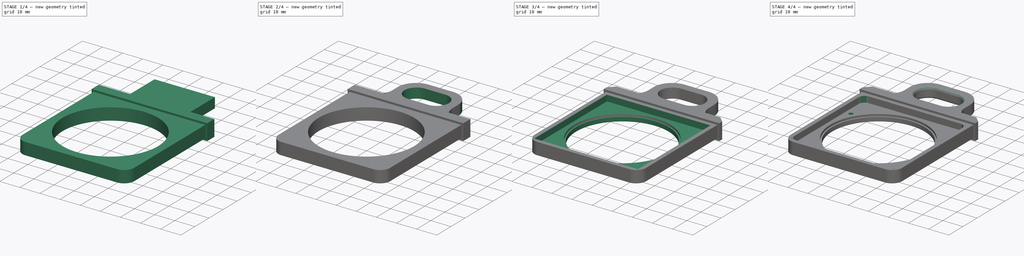
[diagram: build sequence overview — one tinted view per stage of 4, left to right]
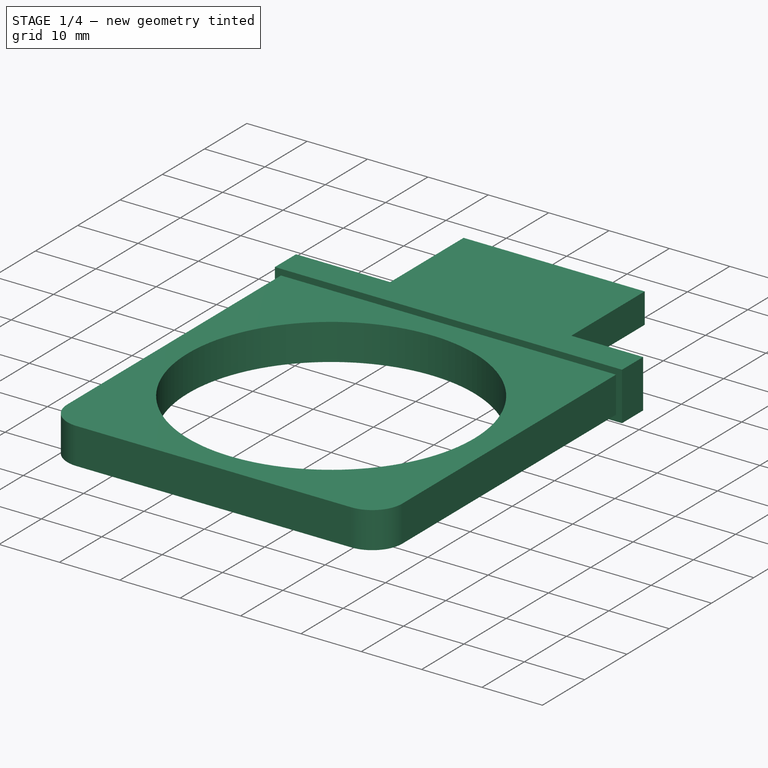
[diagram: stage 1 of 4 — iso view after this stage's code; geometry added in this stage tinted green]
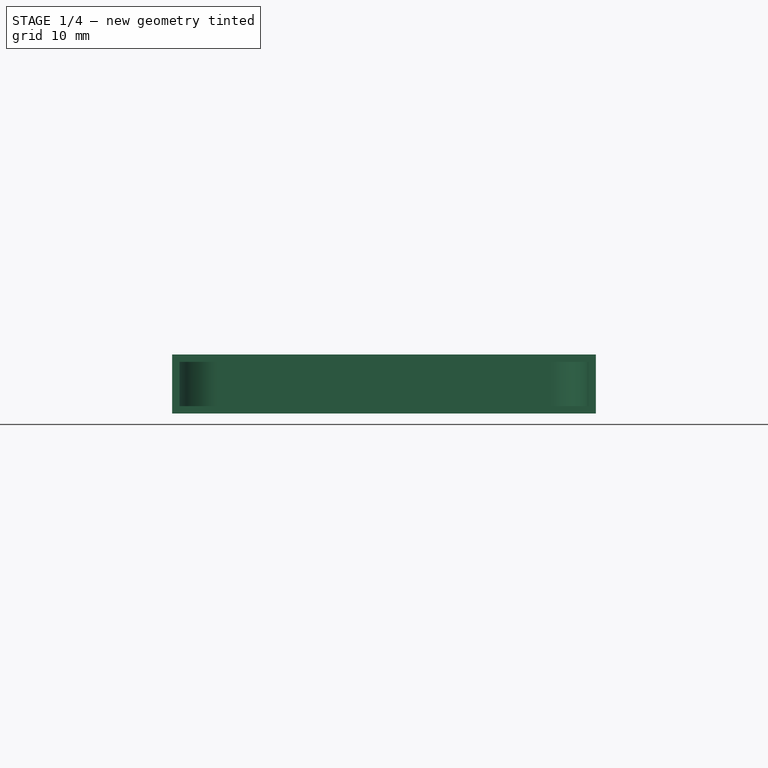
[diagram: stage 1 of 4 — front view after this stage's code; geometry added in this stage tinted green]
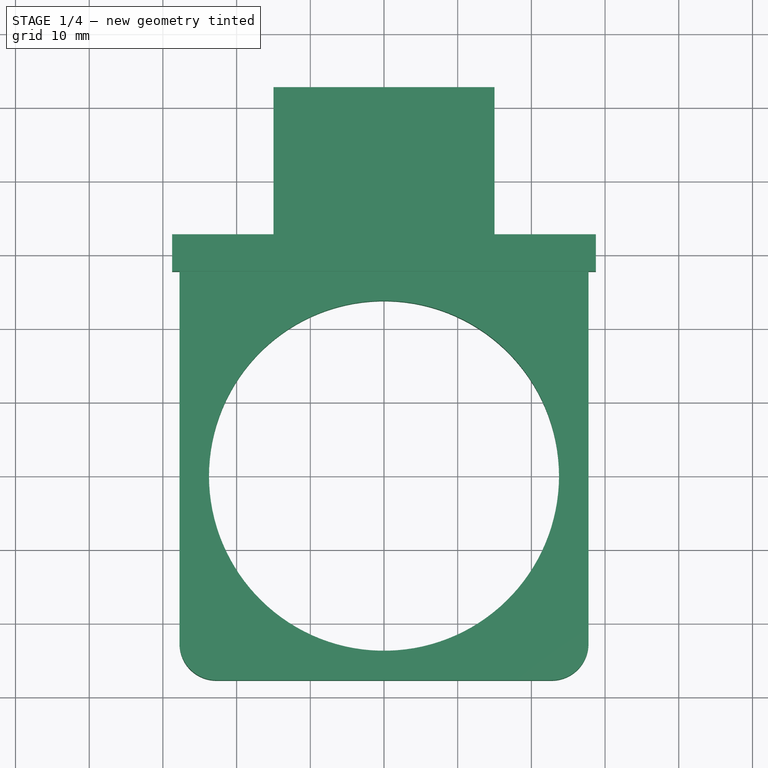
[diagram: stage 1 of 4 — top view after this stage's code; geometry added in this stage tinted green]
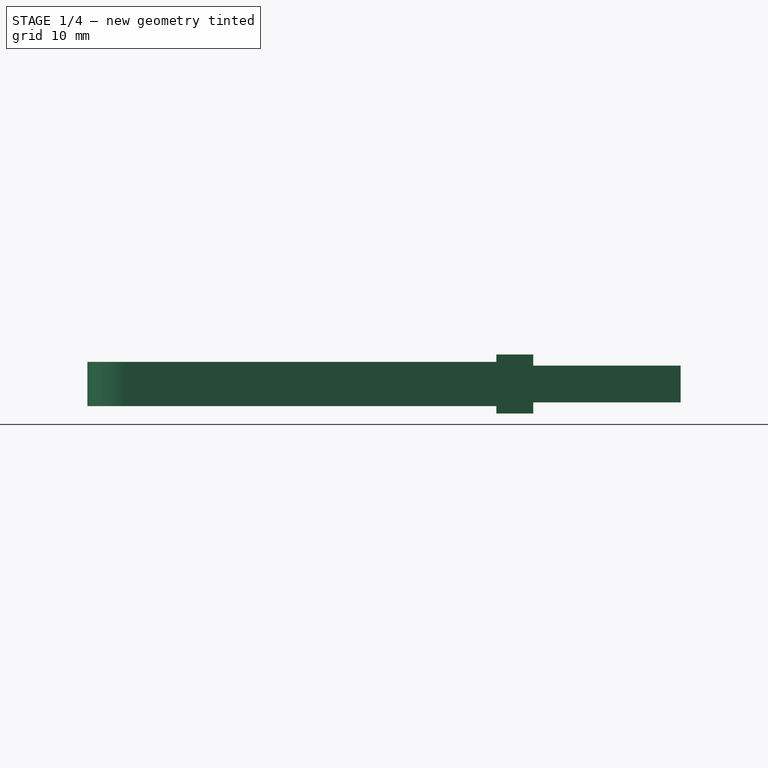
[diagram: stage 1 of 4 — right view after this stage's code; geometry added in this stage tinted green]
FCSTD DOCUMENT  (FreeCAD 0.16R6703 (Git))
Label: Schublade_47mm V1.0
License: CreativeCommons Attribution
LicenseURL: http://creativecommons.org/licenses/by/4.0/
objects: Sketcher::SketchObject×7, PartDesign::Fillet×6, PartDesign::Pad×4, PartDesign::Pocket×3, PartDesign::Chamfer×1
note: 28 computed .brp shape members not serialized (recipe doc carries the construction recipe); baked Part::Feature solids carry a one-line shape summary decoded from their .brp

FEATURE [Sketcher::SketchObject] Sketch
  sketch-geometry (6):
    g0: LineSegment StartX=-27.75 StartY=27.75 StartZ=0 EndX=27.75 EndY=27.75 EndZ=0
    g1: LineSegment StartX=27.75 StartY=27.75 StartZ=0 EndX=27.75 EndY=-27.75 EndZ=0
    g2: LineSegment StartX=27.75 StartY=-27.75 StartZ=0 EndX=-27.75 EndY=-27.75 EndZ=0
    g3: LineSegment StartX=-27.75 StartY=-27.75 StartZ=0 EndX=-27.75 EndY=27.75 EndZ=0
    g4: LineSegment [constr] StartX=-27.75 StartY=27.75 StartZ=0 EndX=27.75 EndY=-27.75 EndZ=0
    g5: Circle CenterX=0 CenterY=0 CenterZ=0 NormalX=0 NormalY=0 NormalZ=1 Radius=23.75
  constraints (15):
    c: Coincident(g0,g1)
    c: Coincident(g1,g2)
    c: Coincident(g2,g3)
    c: Coincident(g3,g0)
    c: Horizontal(g0)
    c: Horizontal(g2)
    c: Vertical(g1)
    c: Vertical(g3)
    c: Coincident(g4,g0)
    c: Coincident(g4,g1)
    c: Symmetric(g4,g4,g-1)
    c: Equal(g3,g0)
    c: DistanceX(g0) = 55.5
    c: Coincident(g5,g-1)
    c: Radius(g5) = 23.75
FEATURE [PartDesign::Pad] Pad
  Length = 6
  Length2 = 100
  Sketch = -> Sketch
  Type = 0
FEATURE [Sketcher::SketchObject] Sketch001
  ExternalGeometry = -> [Pad]
  Placement = pos=(0,27.75,0) rot=(0,0.707107,0.707107;3.14159rad)
  Support = -> Pad [Face1]
  sketch-geometry (8):
    g0: LineSegment StartX=-28.75 StartY=7 StartZ=0 EndX=28.75 EndY=7 EndZ=0
    g1: LineSegment StartX=28.75 StartY=7 StartZ=0 EndX=28.75 EndY=-1 EndZ=0
    g2: LineSegment StartX=28.75 StartY=-1 StartZ=0 EndX=-28.75 EndY=-1 EndZ=0
    g3: LineSegment StartX=-28.75 StartY=-1 StartZ=0 EndX=-28.75 EndY=7 EndZ=0
    g4: LineSegment [constr] StartX=-27.75 StartY=0 StartZ=0 EndX=-28.75 EndY=0 EndZ=0
    g5: LineSegment [constr] StartX=27.75 StartY=0 StartZ=0 EndX=28.75 EndY=0 EndZ=0
    g6: LineSegment [constr] StartX=-27.75 StartY=7 StartZ=0 EndX=-27.75 EndY=6 EndZ=0
    g7: LineSegment [constr] StartX=27.75 StartY=0 StartZ=0 EndX=27.75 EndY=-1 EndZ=0
  constraints (24):
    c: Coincident(g0,g1)
    c: Coincident(g1,g2)
    c: Coincident(g2,g3)
    c: Coincident(g3,g0)
    c: Horizontal(g0)
    c: Horizontal(g2)
    c: Vertical(g1)
    c: Vertical(g3)
    c: Coincident(g4,g-6)
    c: PointOnObject(g4,g3)
    c: Horizontal(g4)
    c: Coincident(g-6,g5)
    c: PointOnObject(g5,g1)
    c: Horizontal(g5)
    c: Equal(g5,g4)
    c: Equal(g6,g7)
    c: Vertical(g7)
    c: Vertical(g6)
    c: Equal(g6,g4)
    c: PointOnObject(g6,g0)
    c: PointOnObject(g7,g2)
    c: Coincident(g7,g5)
    c: Coincident(g6,g-4)
    c: DistanceY(g6) = -1
FEATURE [PartDesign::Pad] Pad001
  Length = 5
  Length2 = 100
  Sketch = -> Sketch001
  Type = 0
FEATURE [Sketcher::SketchObject] Sketch002
  ExternalGeometry = -> [Pad001]
  Placement = pos=(0,32.75,0) rot=(0,0.707107,0.707107;3.14159rad)
  Support = -> Pad001 [Face12]
  sketch-geometry (8):
    g0: LineSegment StartX=-15 StartY=5.5 StartZ=0 EndX=15 EndY=5.5 EndZ=0
    g1: LineSegment StartX=15 StartY=5.5 StartZ=0 EndX=15 EndY=0.5 EndZ=0
    g2: LineSegment StartX=15 StartY=0.5 StartZ=0 EndX=-15 EndY=0.5 EndZ=0
    g3: LineSegment StartX=-15 StartY=0.5 StartZ=0 EndX=-15 EndY=5.5 EndZ=0
    g4: LineSegment [constr] StartX=-28.75 StartY=7 StartZ=0 EndX=-15 EndY=5.5 EndZ=0
    g5: LineSegment [constr] StartX=-28.75 StartY=-1 StartZ=0 EndX=-15 EndY=0.5 EndZ=0
    g6: LineSegment [constr] StartX=15 StartY=5.5 StartZ=0 EndX=28.75 EndY=7 EndZ=0
    g7: LineSegment [constr] StartX=15 StartY=0.5 StartZ=0 EndX=28.75 EndY=-1 EndZ=0
  constraints (21):
    c: Coincident(g0,g1)
    c: Coincident(g1,g2)
    c: Coincident(g2,g3)
    c: Coincident(g3,g0)
    c: Horizontal(g0)
    c: Horizontal(g2)
    c: Vertical(g1)
    c: Vertical(g3)
    c: DistanceX(g0) = 30
    c: Coincident(g4,g-3)
    c: Coincident(g4,g0)
    c: Coincident(g5,g2)
    c: Coincident(g5,g-4)
    c: Coincident(g7,g1)
    c: Coincident(g7,g-4)
    c: Coincident(g6,g0)
    c: Coincident(g6,g-3)
    c: Equal(g4,g5)
    c: Equal(g5,g6)
    c: Equal(g6,g7)
    c: DistanceY(g1,g7) = -1.5
FEATURE [PartDesign::Pad] Pad002
  Length = 20
  Length2 = 100
  Sketch = -> Sketch002
  Type = 0
FEATURE [PartDesign::Fillet] Fillet
  Base = -> Pad002 [Edge2,Edge1]
  Radius = 5
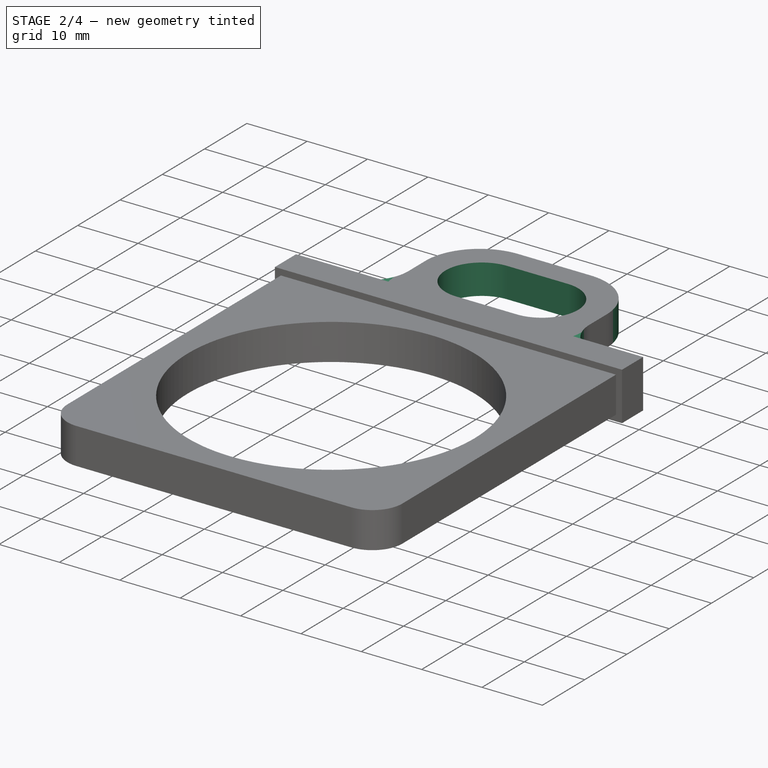
[diagram: stage 2 of 4 — iso view after this stage's code; geometry added in this stage tinted green]
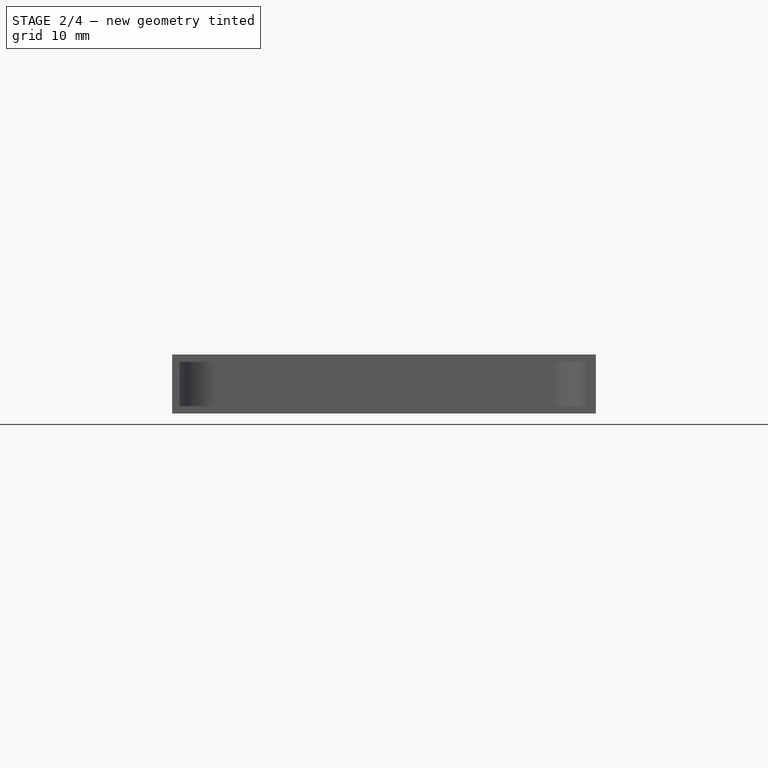
[diagram: stage 2 of 4 — front view after this stage's code; geometry added in this stage tinted green]
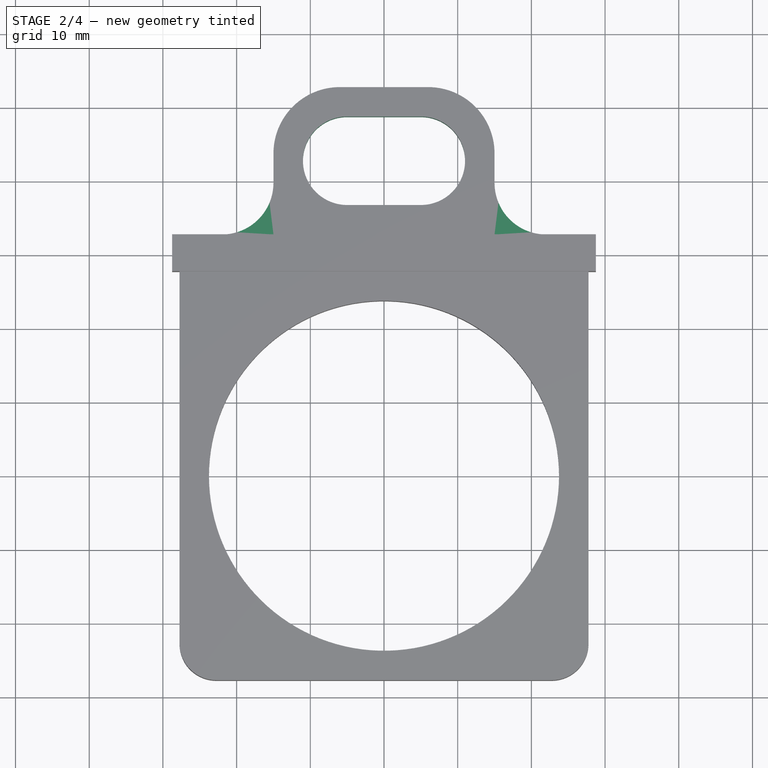
[diagram: stage 2 of 4 — top view after this stage's code; geometry added in this stage tinted green]
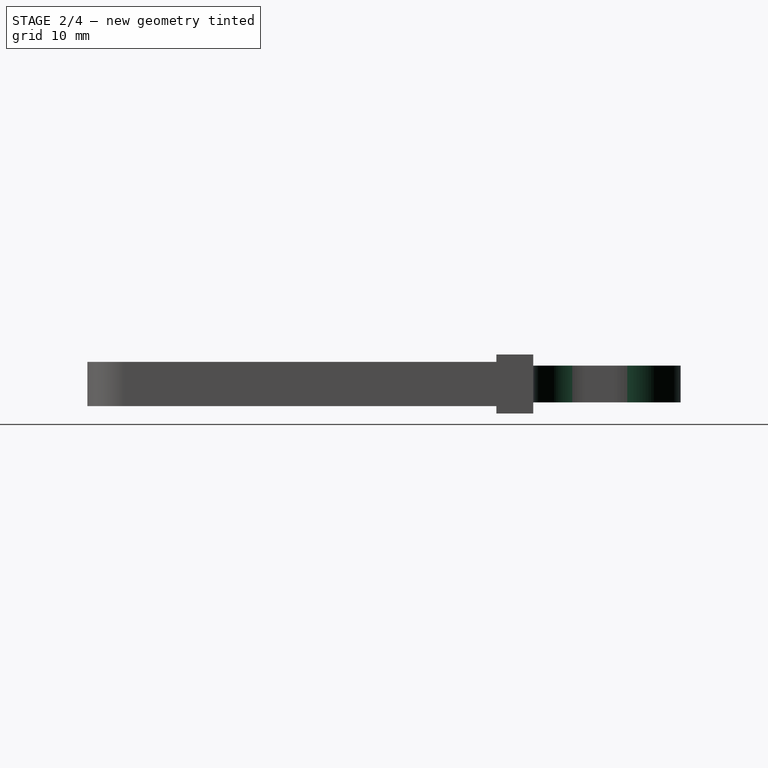
[diagram: stage 2 of 4 — right view after this stage's code; geometry added in this stage tinted green]
FEATURE [Sketcher::SketchObject] Sketch003
  ExternalGeometry = -> [Fillet]
  Placement = pos=(0,0,0.5) rot=(1,0,0;3.14159rad)
  Support = -> Fillet [Face16]
  sketch-geometry (10):
    g0: ArcOfCircle CenterX=-5 CenterY=-42.75 CenterZ=0 NormalX=0 NormalY=0 NormalZ=1 Radius=6 StartAngle=1.5708 EndAngle=4.71239
    g1: ArcOfCircle CenterX=5 CenterY=-42.75 CenterZ=0 NormalX=0 NormalY=0 NormalZ=1 Radius=6 StartAngle=4.71239 EndAngle=7.85398
    g2: LineSegment StartX=-5 StartY=-48.75 StartZ=0 EndX=5 EndY=-48.75 EndZ=0
    g3: LineSegment StartX=-5 StartY=-36.75 StartZ=0 EndX=5 EndY=-36.75 EndZ=0
    g4: LineSegment [constr] StartX=-5 StartY=-42.75 StartZ=0 EndX=5 EndY=-42.75 EndZ=0
    g5: LineSegment [constr] StartX=-15 StartY=-32.75 StartZ=0 EndX=-5 EndY=-42.75 EndZ=0
    g6: LineSegment [constr] StartX=5 StartY=-42.75 StartZ=0 EndX=15 EndY=-32.75 EndZ=0
    g7: LineSegment [constr] StartX=-5 StartY=-42.75 StartZ=0 EndX=-15 EndY=-52.75 EndZ=0
    g8: LineSegment [constr] StartX=5 StartY=-42.75 StartZ=0 EndX=15 EndY=-52.75 EndZ=0
    g9: LineSegment [constr] StartX=-15 StartY=-42.75 StartZ=0 EndX=-11 EndY=-42.75 EndZ=0
  constraints (24):
    c: Tangent(g0,g3) = 1.5708
    c: Tangent(g0,g2) = -1.5708
    c: Tangent(g2,g1) = -1.5708
    c: Tangent(g3,g1) = 1.5708
    c: Horizontal(g2)
    c: Equal(g0,g1)
    c: Coincident(g4,g0)
    c: Coincident(g4,g1)
    c: Coincident(g5,g-3)
    c: Coincident(g5,g0)
    c: Coincident(g1,g6)
    c: Coincident(g6,g-4)
    c: Equal(g5,g6)
    c: Coincident(g8,g1)
    c: Coincident(g7,g0)
    c: Coincident(g7,g-3)
    c: Coincident(g8,g-4)
    c: Equal(g6,g8)
    c: Equal(g8,g7)
    c: DistanceY(g1,g8) = -4
    c: PointOnObject(g9,g0)
    c: Symmetric(g-3,g-3,g9)
    c: Horizontal(g9)
    c: DistanceX(g9) = 4
FEATURE [PartDesign::Pocket] Pocket
  Length = 6
  Sketch = -> Sketch003
  Type = 0
FEATURE [PartDesign::Fillet] Fillet001
  Base = -> Pocket [Edge39,Edge48]
  Radius = 9
FEATURE [PartDesign::Fillet] Fillet002
  Base = -> Fillet001 [Edge3,Edge20]
  Radius = 7
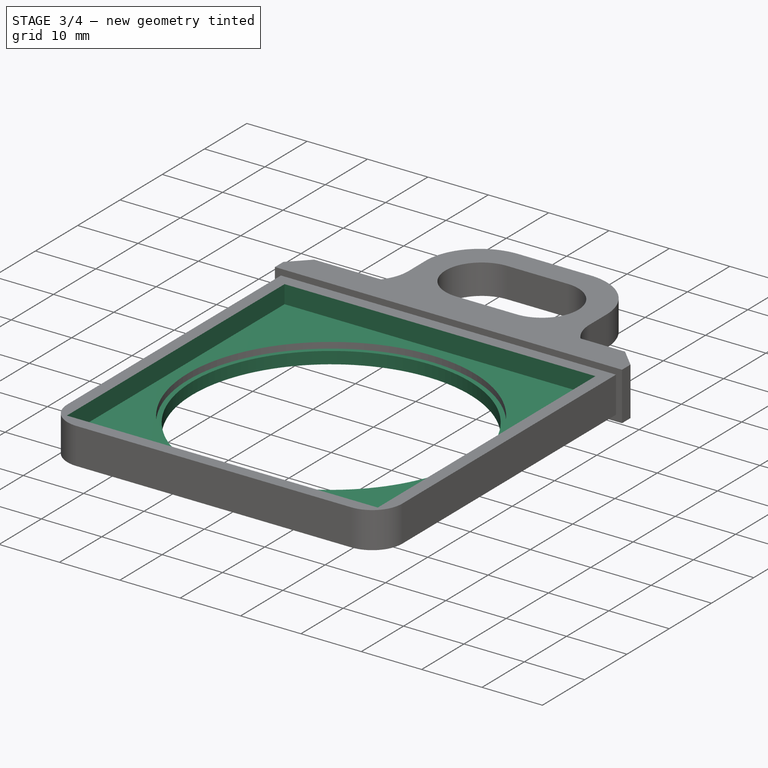
[diagram: stage 3 of 4 — iso view after this stage's code; geometry added in this stage tinted green]
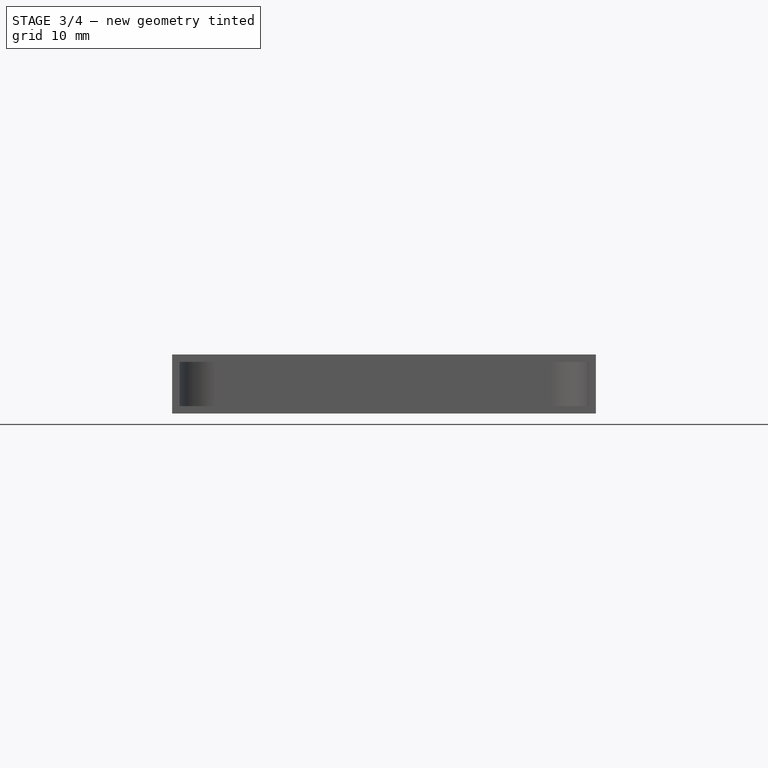
[diagram: stage 3 of 4 — front view after this stage's code; geometry added in this stage tinted green]
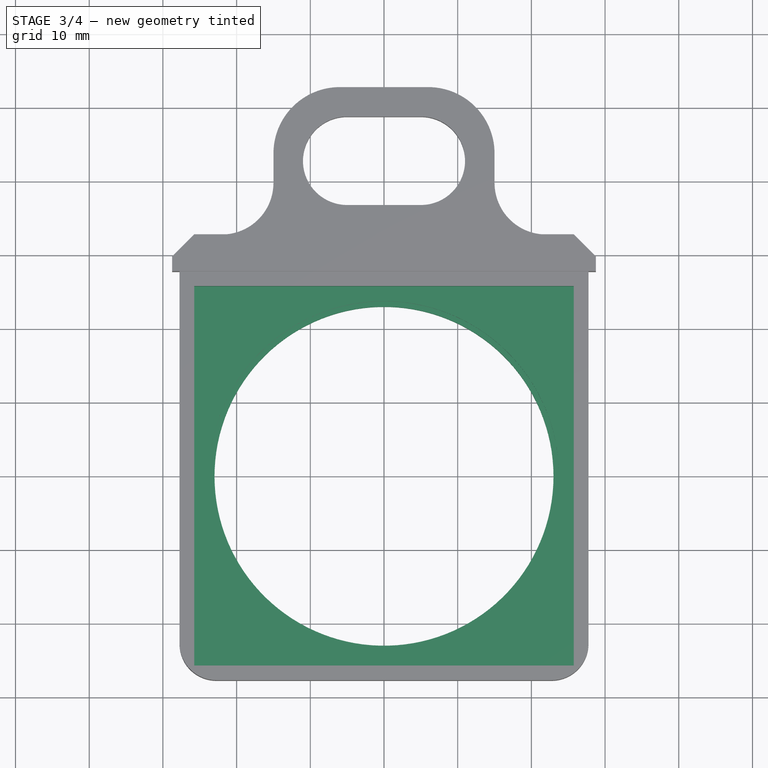
[diagram: stage 3 of 4 — top view after this stage's code; geometry added in this stage tinted green]
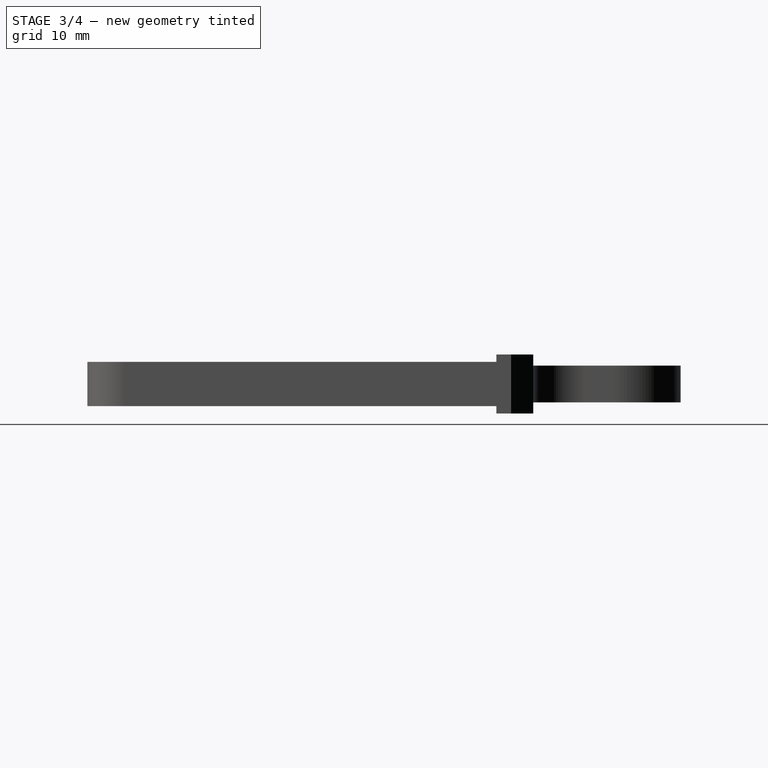
[diagram: stage 3 of 4 — right view after this stage's code; geometry added in this stage tinted green]
FEATURE [PartDesign::Chamfer] Chamfer
  Base = -> Fillet002 [Edge39,Edge38]
  Size = 3
FEATURE [Sketcher::SketchObject] Sketch004
  ExternalGeometry = -> [Chamfer]
  Placement = pos=(0,0,0) rot=(1,0,0;3.14159rad)
  Support = -> Chamfer [Face25]
  sketch-geometry (2):
    g0: Circle CenterX=0 CenterY=0 CenterZ=0 NormalX=0 NormalY=0 NormalZ=1 Radius=23.75
    g1: Circle CenterX=0 CenterY=0 CenterZ=0 NormalX=0 NormalY=0 NormalZ=1 Radius=23
  constraints (4):
    c: Coincident(g0,g-1)
    c: Coincident(g1,g-1)
    c: Equal(g0,g-3)
    c: Radius(g1) = 23
FEATURE [PartDesign::Pad] Pad003
  Length = 2
  Length2 = 100
  Reversed = true
  Sketch = -> Sketch004
  Type = 0
FEATURE [Sketcher::SketchObject] Sketch005
  ExternalGeometry = -> [Pad003]
  Placement = pos=(0,0,6) rot=(0,0,1;0rad)
  Support = -> Pad003 [Face12]
  sketch-geometry (5):
    g0: LineSegment StartX=-25.75 StartY=25.75 StartZ=0 EndX=25.75 EndY=25.75 EndZ=0
    g1: LineSegment StartX=25.75 StartY=25.75 StartZ=0 EndX=25.75 EndY=-25.75 EndZ=0
    g2: LineSegment StartX=25.75 StartY=-25.75 StartZ=0 EndX=-25.75 EndY=-25.75 EndZ=0
    g3: LineSegment StartX=-25.75 StartY=-25.75 StartZ=0 EndX=-25.75 EndY=25.75 EndZ=0
    g4: LineSegment [constr] StartX=-25.75 StartY=25.75 StartZ=0 EndX=25.75 EndY=-25.75 EndZ=0
  constraints (13):
    c: Coincident(g0,g1)
    c: Coincident(g1,g2)
    c: Coincident(g2,g3)
    c: Coincident(g3,g0)
    c: Horizontal(g0)
    c: Horizontal(g2)
    c: Vertical(g1)
    c: Vertical(g3)
    c: Symmetric(g4,g4,g-1)
    c: Coincident(g4,g0)
    c: Coincident(g4,g1)
    c: Equal(g0,g1)
    c: DistanceX(g0,g-3) = 2
FEATURE [PartDesign::Pocket] Pocket001
  Length = 3
  Sketch = -> Sketch005
  Type = 0
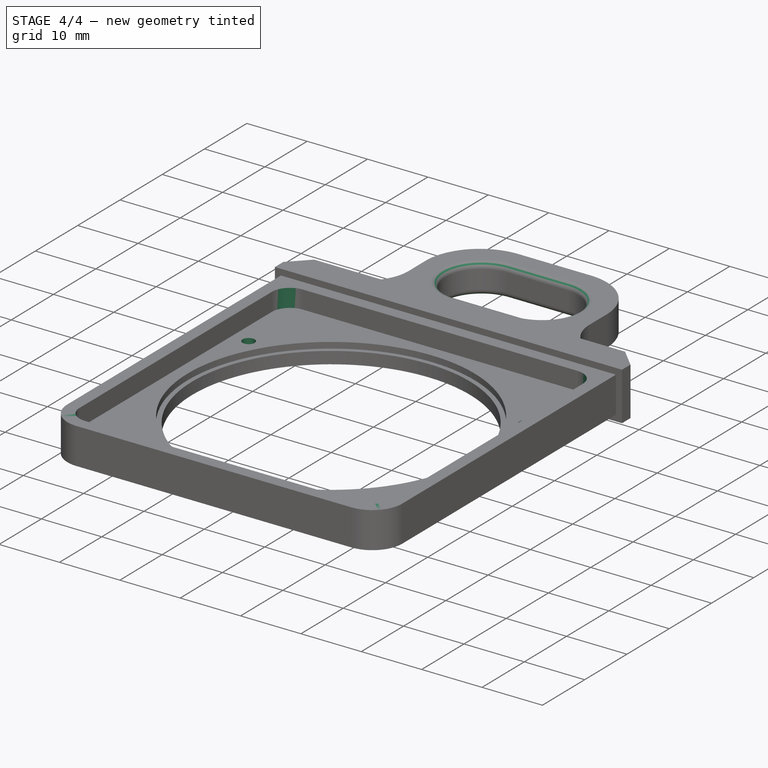
[diagram: stage 4 of 4 — iso view after this stage's code; geometry added in this stage tinted green]
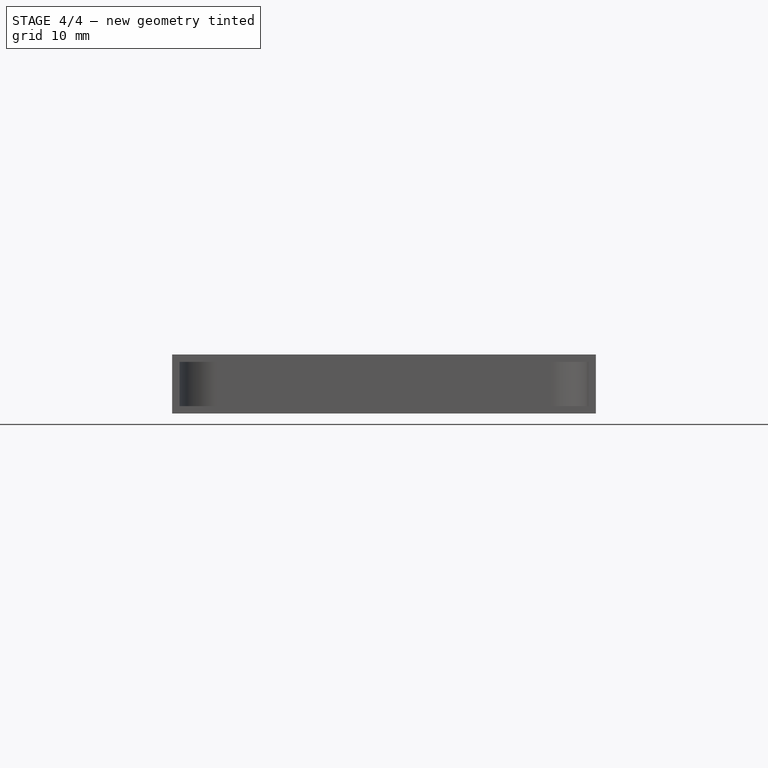
[diagram: stage 4 of 4 — front view after this stage's code; geometry added in this stage tinted green]
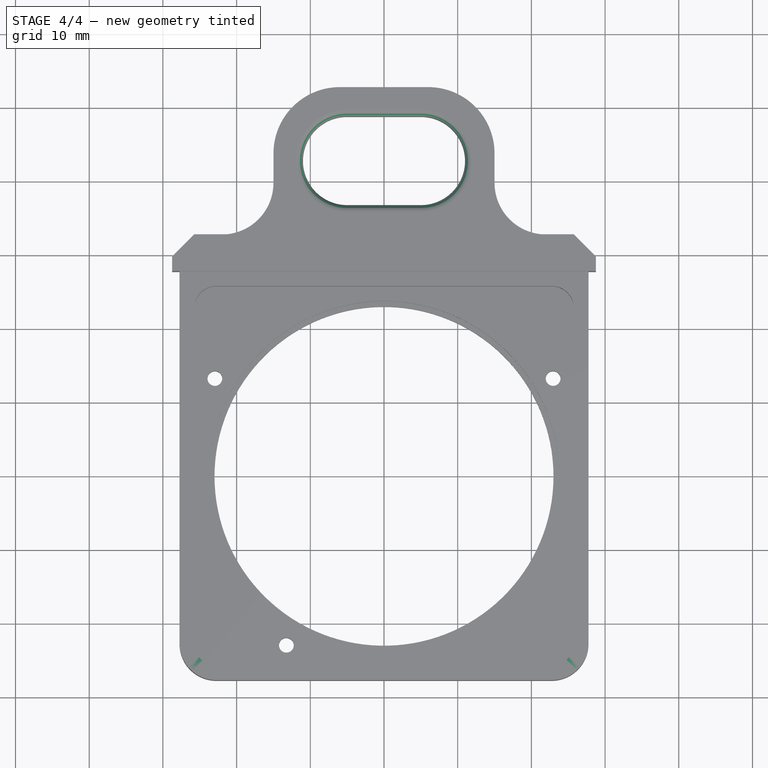
[diagram: stage 4 of 4 — top view after this stage's code; geometry added in this stage tinted green]
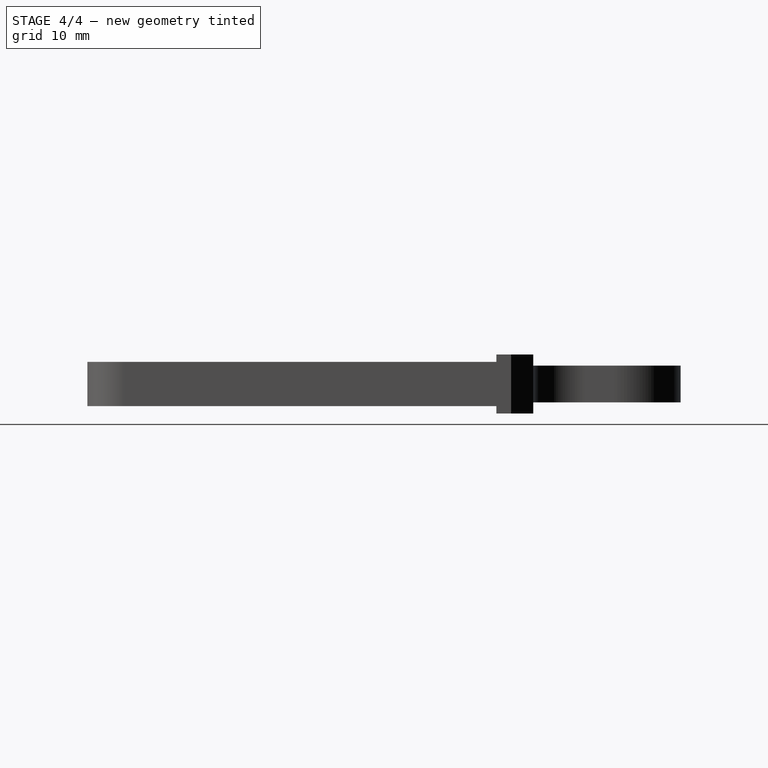
[diagram: stage 4 of 4 — right view after this stage's code; geometry added in this stage tinted green]
FEATURE [Sketcher::SketchObject] Sketch006
  ExternalGeometry = -> [Pocket001]
  Placement = pos=(0,0,3) rot=(0,0,1;0rad)
  Support = -> Pocket001 [Face12]
  sketch-geometry (10):
    g0: LineSegment [constr] StartX=0 StartY=-26.5 StartZ=0 EndX=22.9497 EndY=13.25 EndZ=0
    g1: LineSegment [constr] StartX=22.9497 StartY=13.25 StartZ=0 EndX=-22.9497 EndY=13.25 EndZ=0
    g2: LineSegment [constr] StartX=-22.9497 StartY=13.25 StartZ=0 EndX=0 EndY=-26.5 EndZ=0
    g3: Circle [constr] CenterX=0 CenterY=0 CenterZ=0 NormalX=0 NormalY=0 NormalZ=1 Radius=26.5
    g4: Circle [constr] CenterX=-22.9497 CenterY=13.25 CenterZ=0 NormalX=0 NormalY=0 NormalZ=1 Radius=2.75
    g5: Circle CenterX=-22.9497 CenterY=13.25 CenterZ=0 NormalX=0 NormalY=0 NormalZ=1 Radius=1
    g6: Circle CenterX=22.9497 CenterY=13.25 CenterZ=0 NormalX=0 NormalY=0 NormalZ=1 Radius=1
    g7: Circle [constr] CenterX=-13.25 CenterY=-22.9497 CenterZ=0 NormalX=0 NormalY=0 NormalZ=1 Radius=2.75
    g8: Circle CenterX=-13.25 CenterY=-22.9497 CenterZ=0 NormalX=0 NormalY=0 NormalZ=1 Radius=1
    g9: LineSegment [constr] StartX=0 StartY=0 StartZ=0 EndX=-13.25 EndY=-22.9497 EndZ=0
  constraints (24):
    c: Coincident(g0,g1)
    c: Coincident(g1,g2)
    c: Coincident(g2,g0)
    c: Equal(g0,g1)
    c: Equal(g0,g2)
    c: PointOnObject(g0,g3)
    c: PointOnObject(g1,g3)
    c: PointOnObject(g2,g3)
    c: Coincident(g3,g-1)
    c: Horizontal(g1)
    c: Coincident(g1,g4)
    c: Radius(g4) = 2.75
    c: Equal(g6,g5)
    c: Radius(g5) = 1
    c: Coincident(g5,g1)
    c: Coincident(g6,g0)
    c: Tangent(g4,g-3)
    c: Coincident(g8,g7)
    c: Equal(g7,g4)
    c: Equal(g8,g5)
    c: Tangent(g7,g-3)
    c: Coincident(g9,g-1)
    c: Coincident(g9,g7)
    c: Angle(g-2,g9) = 2.61799
FEATURE [PartDesign::Pocket] Pocket002
  Length = 6
  Sketch = -> Sketch006
  Type = 0
FEATURE [PartDesign::Fillet] Fillet003
  Base = -> Pocket002 [Edge92]
  Radius = 1
FEATURE [PartDesign::Fillet] Fillet004
  Base = -> Fillet003 [Edge52]
  Radius = 1
FEATURE [PartDesign::Fillet] Fillet005
  Base = -> Fillet004 [Edge103,Edge101,Edge104,Edge106]
  Radius = 3
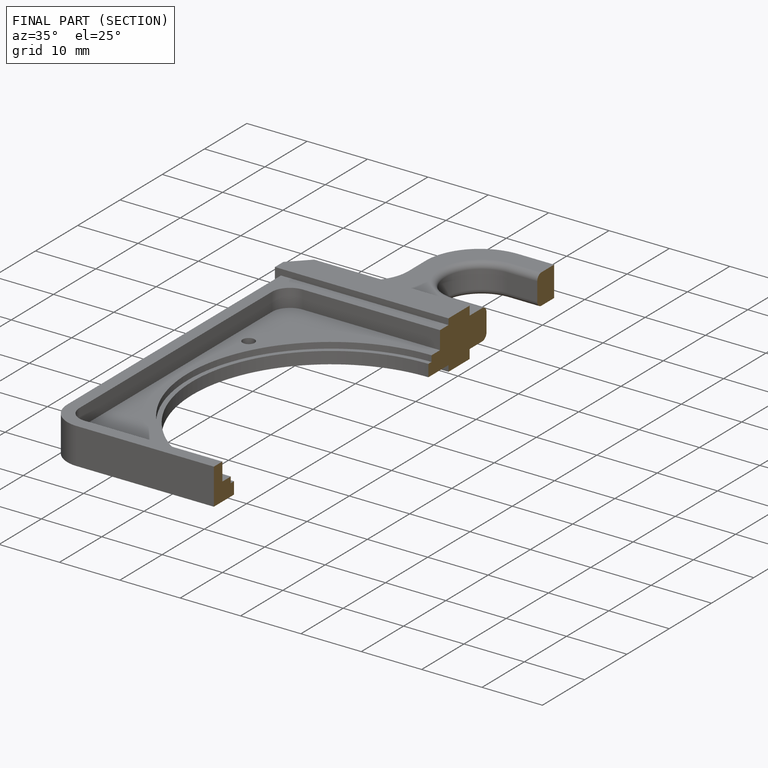
[diagram: finished part — half-section view (interior)]
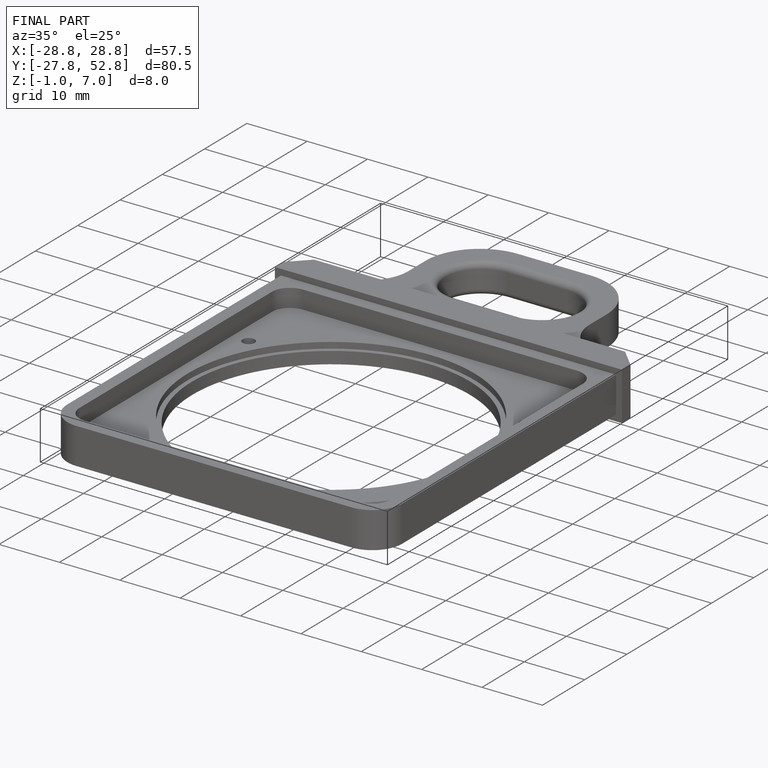
[diagram: finished part — iso view with bounding-box wireframe]
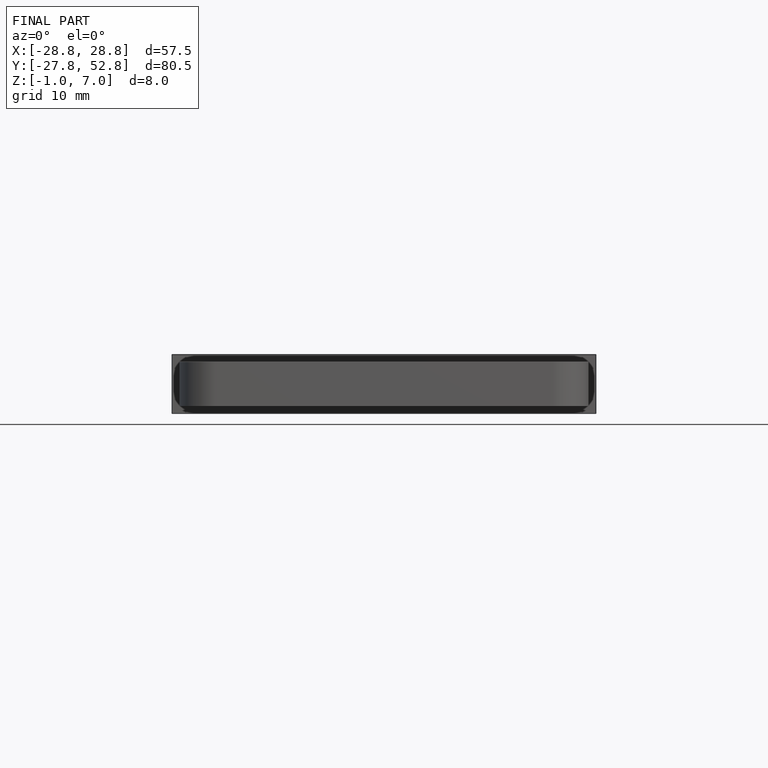
[diagram: finished part — front view with bounding-box wireframe]
